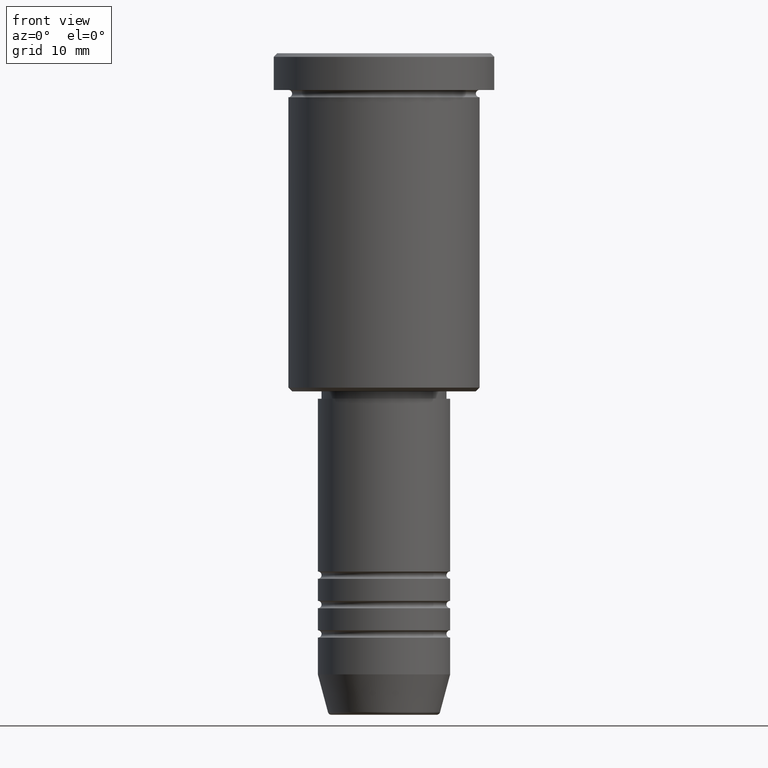
[diagram: clean part render]
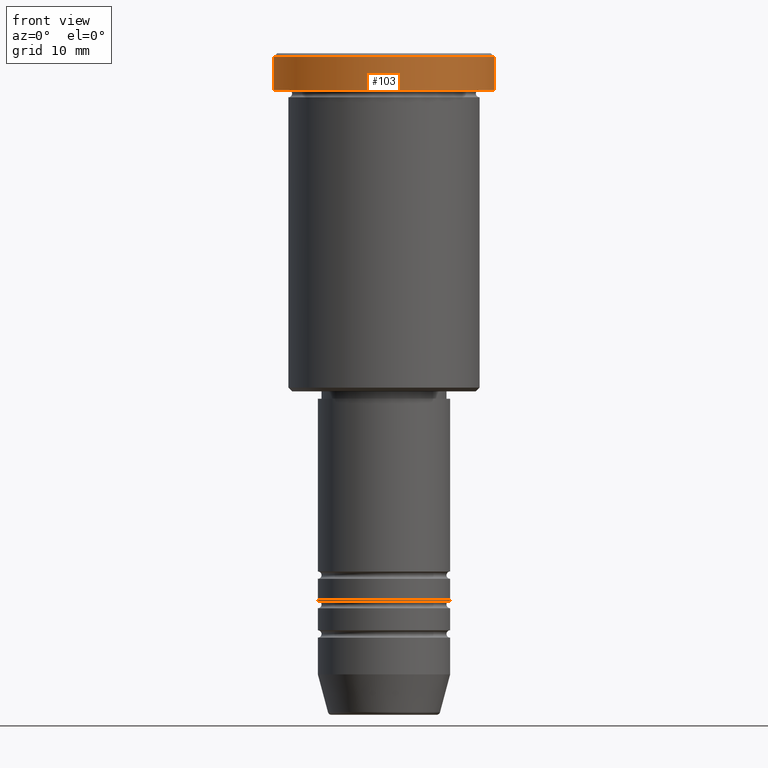
[diagram: same view with one face highlighted and labeled with its STEP entity id]
A machine part, front view. The second image highlights one B-rep face of the part: STEP entity #103.
In plain terms, the highlighted cylindrical surface (partial cylindrical patch) has radius 15 mm, axis along (-0, -0, 1).
Its self-contained STEP definition (entity closure, byte-faithful):
#50 = DIRECTION ( 'NONE',  ( 1.000000000000000000, 0.000000000000000000, 0.000000000000000000 ) ) ;
#80 = CARTESIAN_POINT ( 'NONE',  ( 15.00000000000000000, 0.000000000000000000, -0.5000000000000108802 ) ) ;
#87 = CARTESIAN_POINT ( 'NONE',  ( 15.00000000000000000, 0.000000000000000000, 0.000000000000000000 ) ) ;
#99 = CARTESIAN_POINT ( 'NONE',  ( -15.00000000000000000, 1.836970198721029589E-15, -4.999999999999999112 ) ) ;
#103 = ADVANCED_FACE ( 'NONE', ( #691 ), #140, .T. ) ;
#140 = CYLINDRICAL_SURFACE ( 'NONE', #872, 15.00000000000000000 ) ;
#169 = VERTEX_POINT ( 'NONE', #80 ) ;
#176 = LINE ( 'NONE', #87, #1077 ) ;
#231 = CARTESIAN_POINT ( 'NONE',  ( -15.00000000000000000, 1.836970198721029589E-15, -0.5000000000000108802 ) ) ;
#236 = CIRCLE ( 'NONE', #927, 15.00000000000000000 ) ;
#315 = EDGE_CURVE ( 'NONE', #774, #169, #176, .T. ) ;
#360 = LINE ( 'NONE', #379, #1025 ) ;
#365 = EDGE_CURVE ( 'NONE', #169, #377, #236, .T. ) ;
#375 = CARTESIAN_POINT ( 'NONE',  ( 0.000000000000000000, 0.000000000000000000, -0.5000000000000108802 ) ) ;
#377 = VERTEX_POINT ( 'NONE', #231 ) ;
#379 = CARTESIAN_POINT ( 'NONE',  ( -15.00000000000000000, 1.836970198721029589E-15, 0.000000000000000000 ) ) ;
#396 = DIRECTION ( 'NONE',  ( 0.000000000000000000, 0.000000000000000000, -1.000000000000000000 ) ) ;
#426 = CARTESIAN_POINT ( 'NONE',  ( 0.000000000000000000, 0.000000000000000000, -4.999999999999999112 ) ) ;
#507 = CARTESIAN_POINT ( 'NONE',  ( 0.000000000000000000, 0.000000000000000000, 0.000000000000000000 ) ) ;
#539 = EDGE_LOOP ( 'NONE', ( #743, #907, #987, #544 ) ) ;
#544 = ORIENTED_EDGE ( 'NONE', *, *, #365, .T. ) ;
#600 = DIRECTION ( 'NONE',  ( 1.000000000000000000, 0.000000000000000000, 0.000000000000000000 ) ) ;
#621 = DIRECTION ( 'NONE',  ( -0.000000000000000000, -0.000000000000000000, 1.000000000000000000 ) ) ;
#645 = AXIS2_PLACEMENT_3D ( 'NONE', #426, #621, #717 ) ;
#666 = VERTEX_POINT ( 'NONE', #99 ) ;
#691 = FACE_OUTER_BOUND ( 'NONE', #539, .T. ) ;
#697 = DIRECTION ( 'NONE',  ( -0.000000000000000000, -0.000000000000000000, 1.000000000000000000 ) ) ;
#717 = DIRECTION ( 'NONE',  ( 1.000000000000000000, 0.000000000000000000, 0.000000000000000000 ) ) ;
#743 = ORIENTED_EDGE ( 'NONE', *, *, #765, .F. ) ;
#750 = DIRECTION ( 'NONE',  ( -0.000000000000000000, -0.000000000000000000, 1.000000000000000000 ) ) ;
#765 = EDGE_CURVE ( 'NONE', #666, #377, #360, .T. ) ;
#774 = VERTEX_POINT ( 'NONE', #1109 ) ;
#783 = CIRCLE ( 'NONE', #645, 15.00000000000000000 ) ;
#823 = DIRECTION ( 'NONE',  ( -0.000000000000000000, -0.000000000000000000, 1.000000000000000000 ) ) ;
#872 = AXIS2_PLACEMENT_3D ( 'NONE', #507, #697, #600 ) ;
#907 = ORIENTED_EDGE ( 'NONE', *, *, #994, .T. ) ;
#927 = AXIS2_PLACEMENT_3D ( 'NONE', #375, #396, #50 ) ;
#987 = ORIENTED_EDGE ( 'NONE', *, *, #315, .T. ) ;
#994 = EDGE_CURVE ( 'NONE', #666, #774, #783, .T. ) ;
#1025 = VECTOR ( 'NONE', #750, 1000.000000000000000 ) ;
#1077 = VECTOR ( 'NONE', #823, 1000.000000000000000 ) ;
#1109 = CARTESIAN_POINT ( 'NONE',  ( 15.00000000000000000, 0.000000000000000000, -4.999999999999999112 ) ) ;